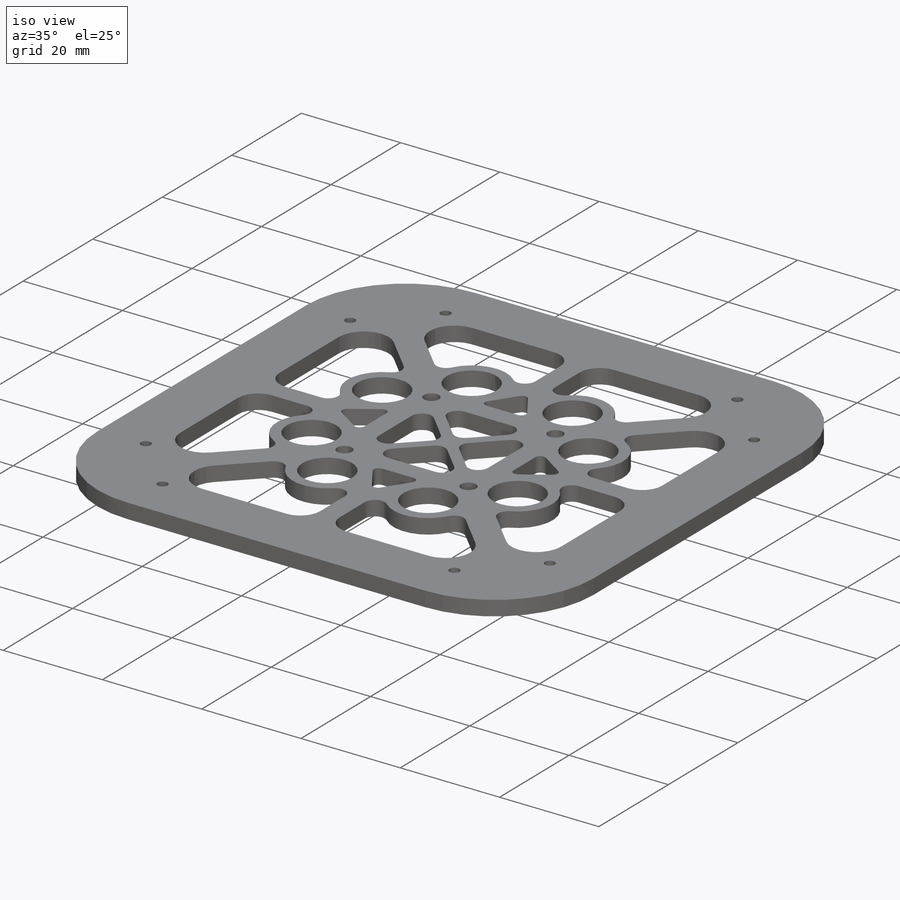
[diagram: iso view]
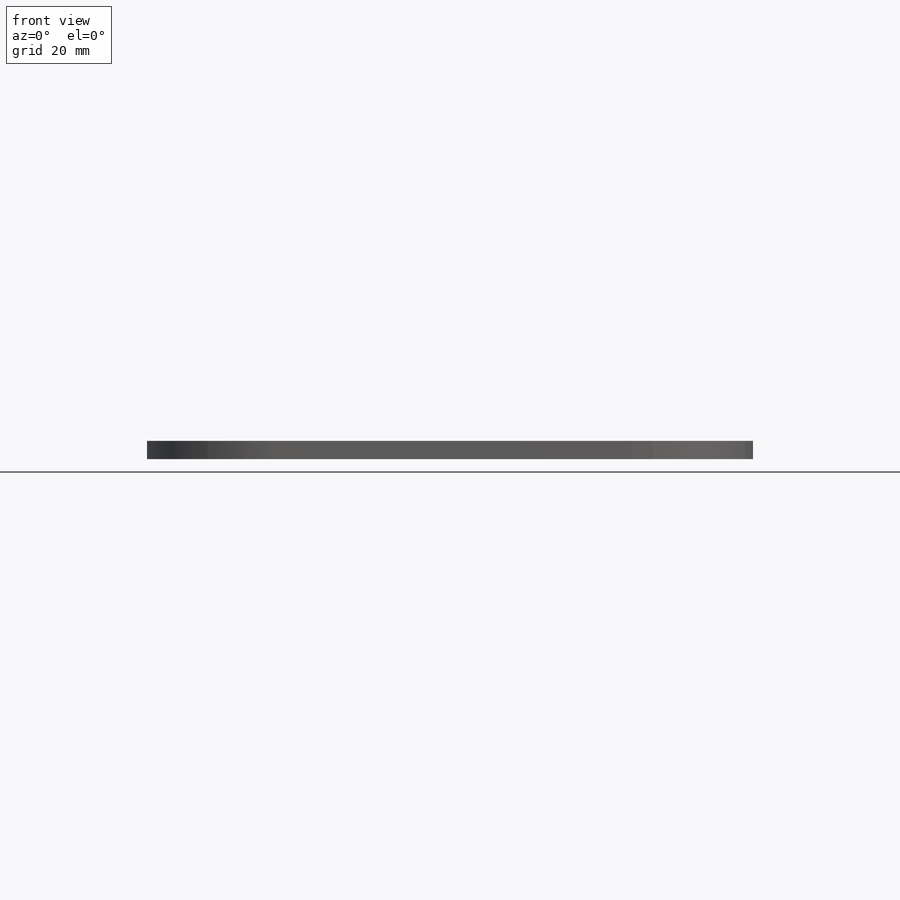
[diagram: front view]
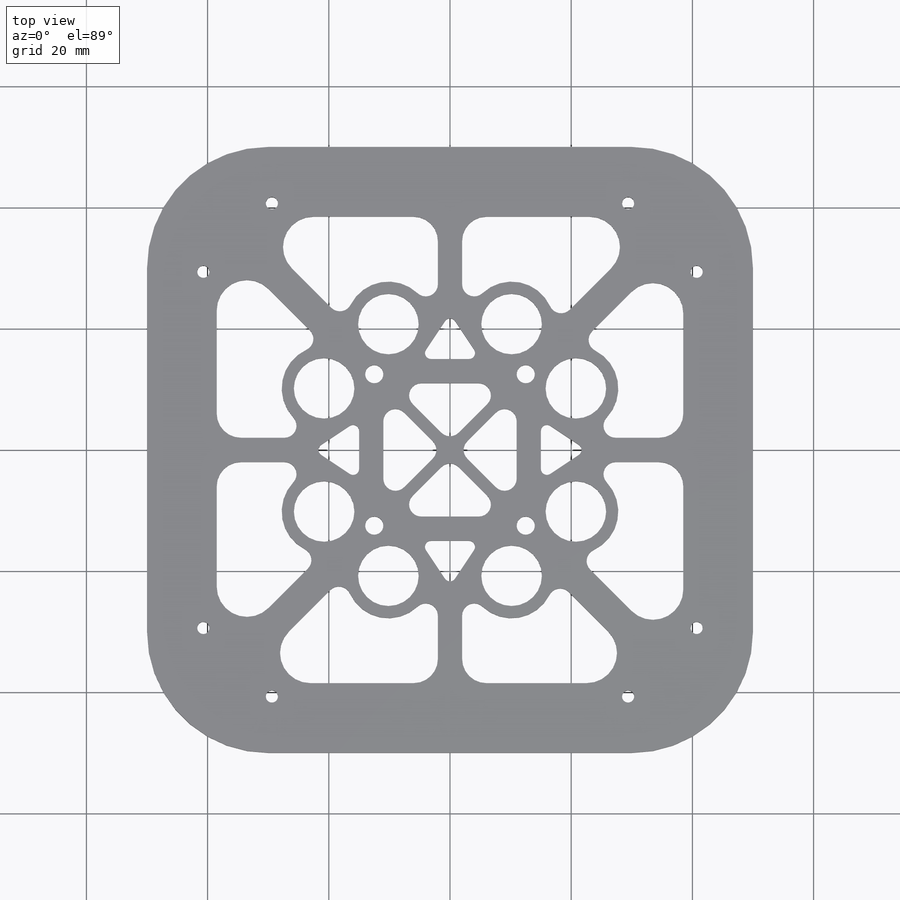
[diagram: top view]
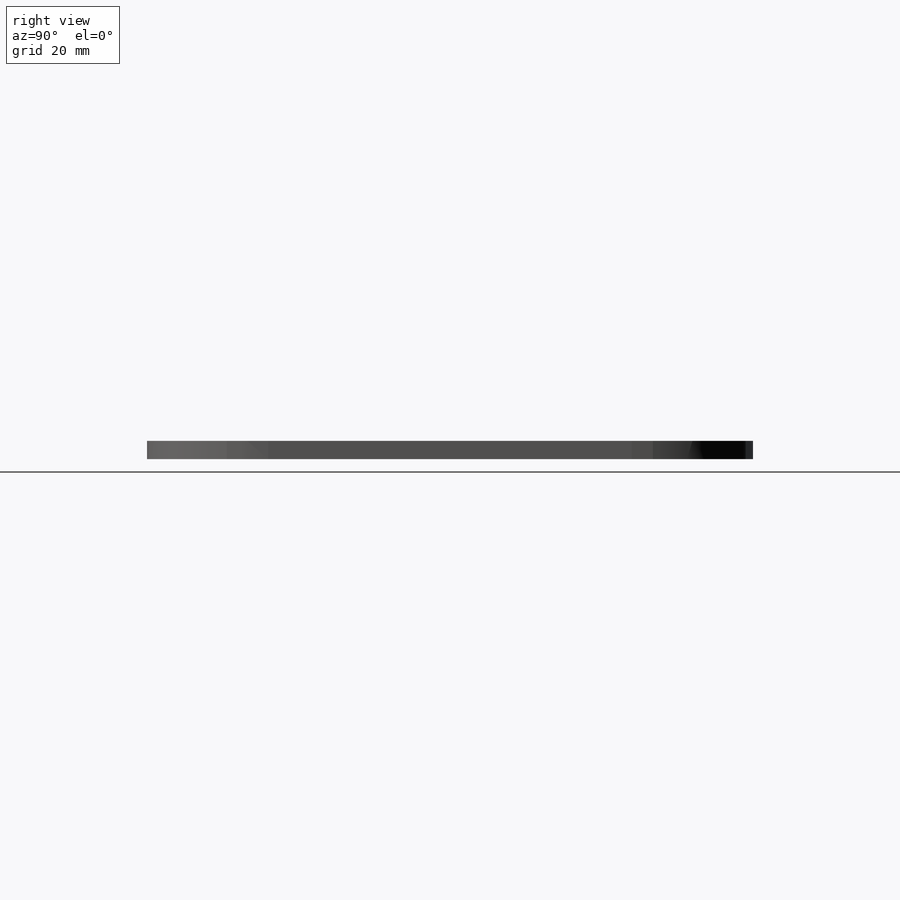
[diagram: right view]
SOLIDWORKS PART (.sldprt)
format: sldprt  version: not decoded by parser v0  size: 523,264 bytes
history: native  units: mm
features: fillet x5, plane x3, material x1, sketch x1, extrude x1 (+8 scaffold rows collapsed)
feature tree (19):
  scaffold x8  (default folders/planes/origin — collapsed)
  material  "Matériau <non spécifié>"
  plane  "Plan de face"
  plane  "Plan de dessus"
  plane  "Plan de droite"
  sketch  "Esquisse1"  dims[c1.D11=10.0mm c1.D13=10.0mm c1.D25=7.0mm c1.D26=7.0mm c1.D28=~1.760578mm c1.D29=~0.711704mm c1.D1=50.0mm c1.D2=100.0mm c1.D3=50.0mm c1.D4=100.0mm c1.D5=25.0mm c1.D6=1.5mm c1.D7=1.0mm c1.D8=1.0mm c2.D1=1.5mm c2.D3=10.0mm c2.D5=50.0mm c2.D6=50.0mm c2.D8=25.0mm c2.D9=3.5mm c2.D10=~14.043683mm c3.D10=~1.996443deg c4.D10=~15.68429mm c5.D10=0.0deg c6.D10=1.5mm c6.D11=~18.13119mm c7.D11=0.0deg c8.D11=1.5mm c8.D12=1.5mm c8.D13=1.5mm c8.D14=~28.777651mm c9.D14=0.0deg c10.D14=2.5mm c10.D15=~28.538838mm c11.D15=360.0deg c11.D16=1.5mm c11.D17=2.5mm c11.D9=2.5mm c11.D10=7.5mm c11.D14=7.5mm c12.D15=7.5mm c12.D16=7.5mm c12.D18=7.5mm c12.D17=17.5mm c13.D17=~179.558655deg c14.D17=50.0mm c14.D19=2.0mm c15.D17=5.0mm c15.D19=~5.258287mm c16.D17=10.0mm c16.D19=5.0mm c16.D20=2.0mm c16.D21=2.0mm c16.D22=1.5mm c16.D23=17.5mm c16.D24=17.5mm c16.D28=7.0mm c16.D29=8.0mm c16.D30=8.0mm c16.D31=18.0mm c16.D32=~20.202028mm c16.D27=4.0 c17.D32=4.0]
  extrude  "Boss.-Extru.1"  Depth=3mm
  fillet  "Congé1"  Radius=20mm
  fillet  "Congé2"  Radius=5mm
  fillet  "Congé3"  Radius=4mm
  fillet  "Congé4"  Radius=2mm
  fillet  "Congé5"  Radius=1mm
decode coverage: 7 of 7 modeling features carry decoded parameters
note: ~ marks probable driven/reference dimensions
note: suppression state not decoded; provenance and decode notes live in map.json
